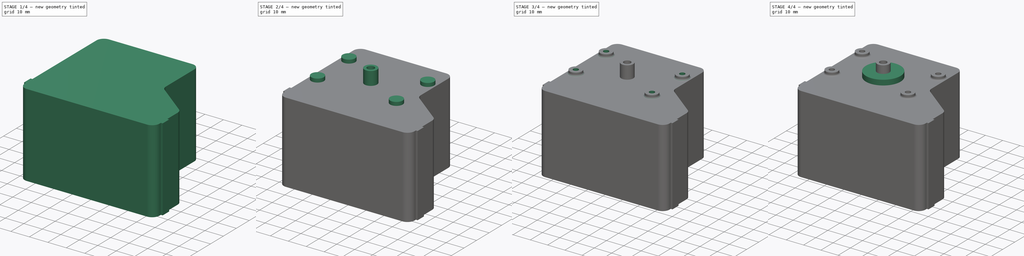
[diagram: build sequence overview — one tinted view per stage of 4, left to right]
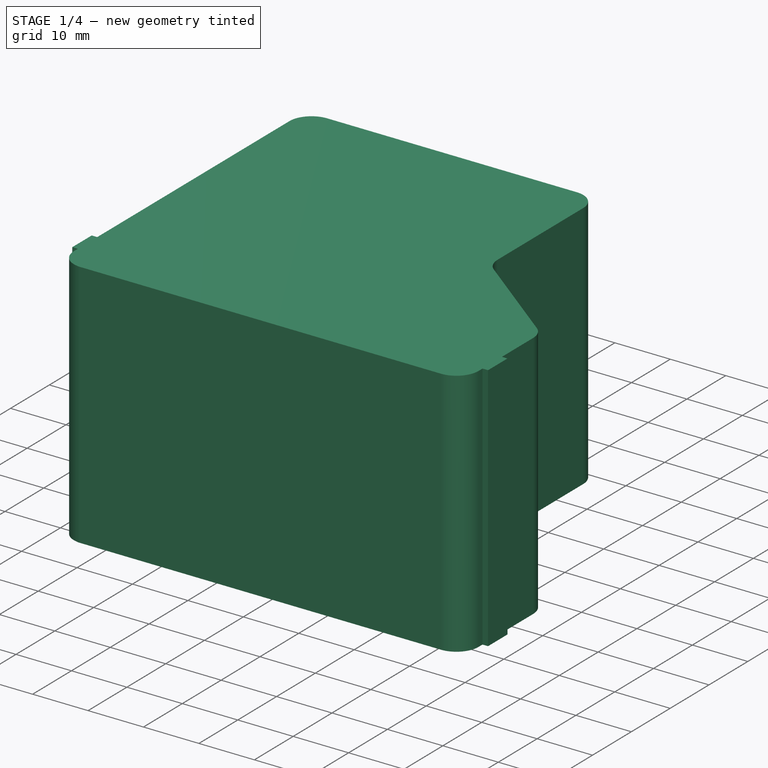
[diagram: stage 1 of 4 — iso view after this stage's code; geometry added in this stage tinted green]
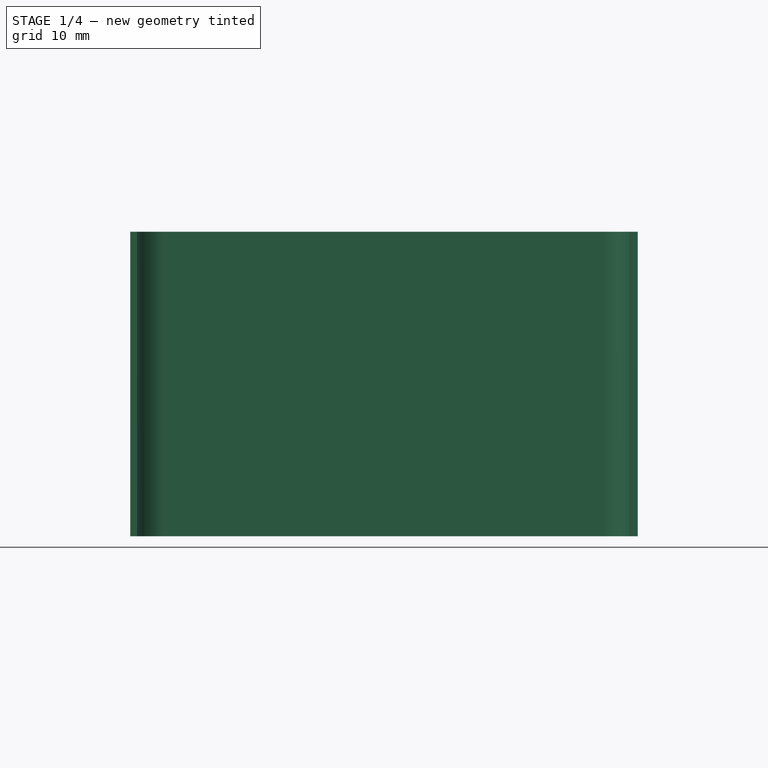
[diagram: stage 1 of 4 — front view after this stage's code; geometry added in this stage tinted green]
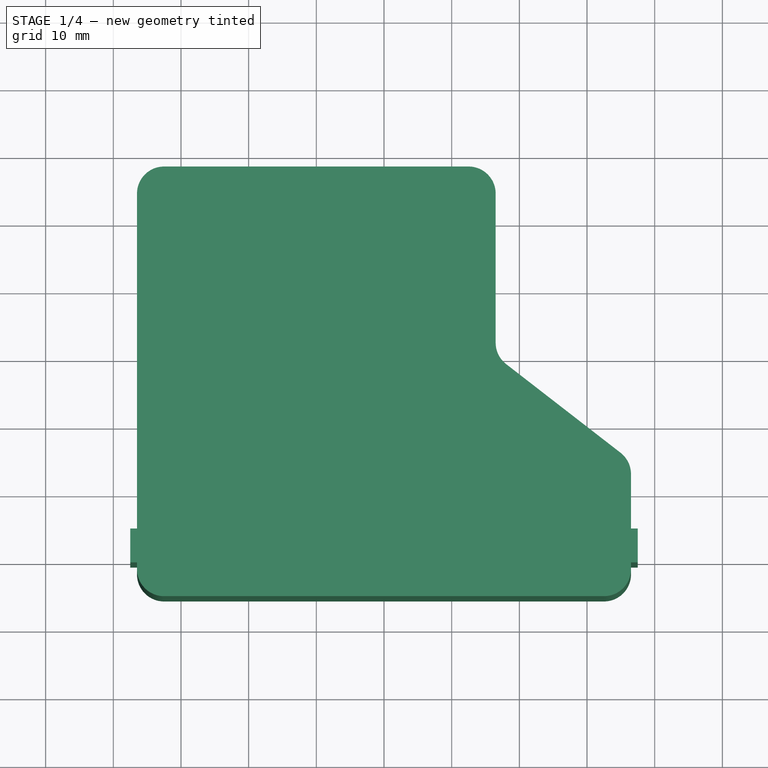
[diagram: stage 1 of 4 — top view after this stage's code; geometry added in this stage tinted green]
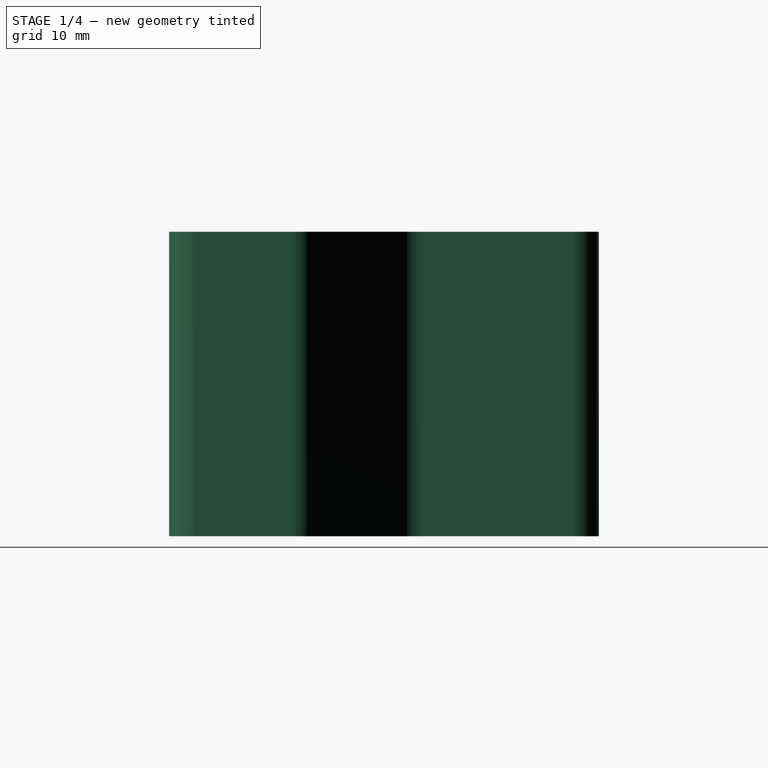
[diagram: stage 1 of 4 — right view after this stage's code; geometry added in this stage tinted green]
FCSTD DOCUMENT  (FreeCAD 0.16R6712 (Git))
Label: opc
License: All rights reserved
LicenseURL: http://en.wikipedia.org/wiki/All_rights_reserved
objects: Sketcher::SketchObject×7, PartDesign::Pad×5, PartDesign::Fillet×3, PartDesign::Pocket×2, Part::Feature×1
note: 25 computed .brp shape members not serialized (recipe doc carries the construction recipe); baked Part::Feature solids carry a one-line shape summary decoded from their .brp

FEATURE [Sketcher::SketchObject] Sketch
  sketch-geometry (16):
    g0: LineSegment StartX=-26.5 StartY=-30.5 StartZ=0 EndX=-26.5 EndY=-35.5 EndZ=0
    g1: LineSegment StartX=-26.5 StartY=-35.5 StartZ=0 EndX=46.5 EndY=-35.5 EndZ=0
    g2: LineSegment StartX=46.5 StartY=-35.5 StartZ=0 EndX=46.5 EndY=-30.5 EndZ=0
    g3: LineSegment StartX=46.5 StartY=-30.5 StartZ=0 EndX=47.5 EndY=-30.5 EndZ=0
    g4: LineSegment StartX=-26.5 StartY=-30.5 StartZ=0 EndX=-27.5 EndY=-30.5 EndZ=0
    g5: LineSegment StartX=-27.5 StartY=-30.5 StartZ=0 EndX=-27.5 EndY=-25.5 EndZ=0
    g6: LineSegment StartX=-27.5 StartY=-25.5 StartZ=0 EndX=-26.5 EndY=-25.5 EndZ=0
    g7: LineSegment StartX=47.5 StartY=-30.5 StartZ=0 EndX=47.5 EndY=-25.5 EndZ=0
    g8: LineSegment StartX=47.5 StartY=-25.5 StartZ=0 EndX=46.5 EndY=-25.5 EndZ=0
    g9: LineSegment StartX=46.5 StartY=-25.5 StartZ=0 EndX=46.5 EndY=-15.5 EndZ=0
    g10: LineSegment StartX=46.5 StartY=-15.5 StartZ=0 EndX=26.5 EndY=0 EndZ=0
    g11: LineSegment StartX=26.5 StartY=0 StartZ=0 EndX=26.5 EndY=28 EndZ=0
    g12: LineSegment StartX=26.5 StartY=28 StartZ=0 EndX=-26.5 EndY=28 EndZ=0
    g13: LineSegment StartX=-26.5 StartY=28 StartZ=0 EndX=-26.5 EndY=-25.5 EndZ=0
    g14: LineSegment [constr] StartX=-26.5 StartY=-25.5 StartZ=0 EndX=-26.5 EndY=-30.5 EndZ=0
    g15: LineSegment [constr] StartX=46.5 StartY=-25.5 StartZ=0 EndX=46.5 EndY=-30.5 EndZ=0
  constraints (46):
    c: Coincident(g1,g0)
    c: Horizontal(g1)
    c: Coincident(g2,g1)
    c: Coincident(g3,g2)
    c: Coincident(g4,g0)
    c: Coincident(g5,g4)
    c: Vertical(g5)
    c: Coincident(g6,g5)
    c: Coincident(g7,g3)
    c: Coincident(g8,g7)
    c: Horizontal(g8)
    c: Coincident(g9,g8)
    c: Vertical(g9)
    c: Coincident(g10,g9)
    c: Coincident(g11,g10)
    c: Vertical(g11)
    c: Horizontal(g12)
    c: Coincident(g13,g12)
    c: Coincident(g13,g6)
    c: Vertical(g13)
    c: Equal(g3,g4)
    c: Equal(g4,g6)
    c: Equal(g6,g8)
    c: Horizontal(g4)
    c: Horizontal(g3)
    c: Vertical(g7)
    c: Vertical(g2)
    c: Horizontal(g6)
    c: Vertical(g0)
    c: Equal(g7,g5)
    c: DistanceX(g12,g12) = 53
    c: DistanceY(g0,g12) = 63.5
    c: Coincident(g11,g12)
    c: DistanceX(g4,g4) = 1
    c: DistanceX(g4,g3) = 75
    c: DistanceY(g5,g5) = 5
    c: DistanceY(g0,g0) = 5
    c: Equal(g0,g2)
    c: DistanceY(g9,g9) = 10
    c: Coincident(g14,g6)
    c: Coincident(g14,g0)
    c: Coincident(g15,g8)
    c: Coincident(g15,g2)
    c: DistanceY(g11,g11) = 28
    c: Symmetric(g12,g11,g-2)
    c: DistanceY(g0,g-1) = 35.5
FEATURE [PartDesign::Pad] Pad
  Length = 45
  Length2 = 100
  Sketch = -> Sketch
  Type = 0
FEATURE [PartDesign::Fillet] Fillet
  Base = -> Pad [Edge26,Edge23,Edge29,Edge2,Edge5,Edge20]
  Radius = 4
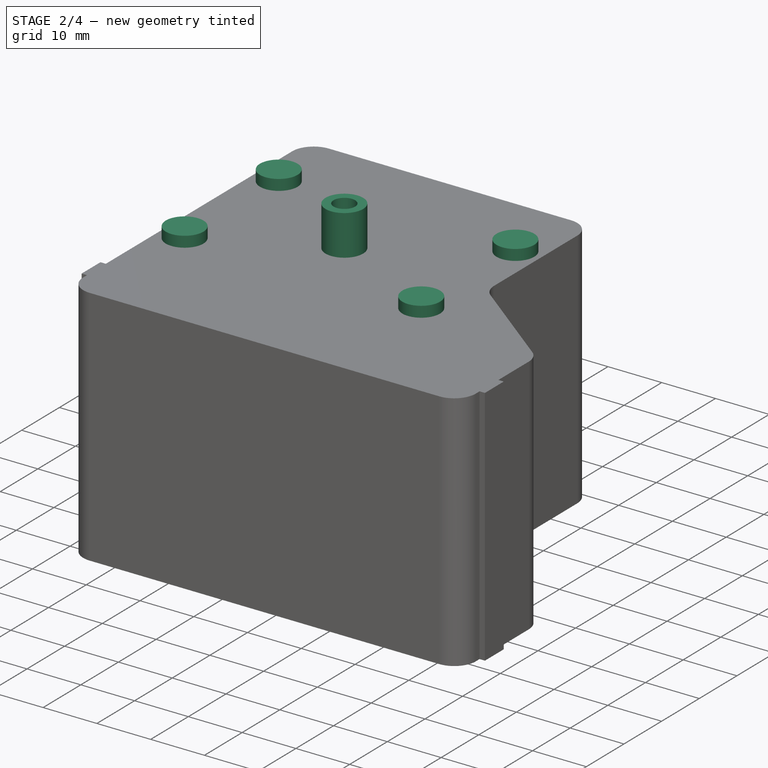
[diagram: stage 2 of 4 — iso view after this stage's code; geometry added in this stage tinted green]
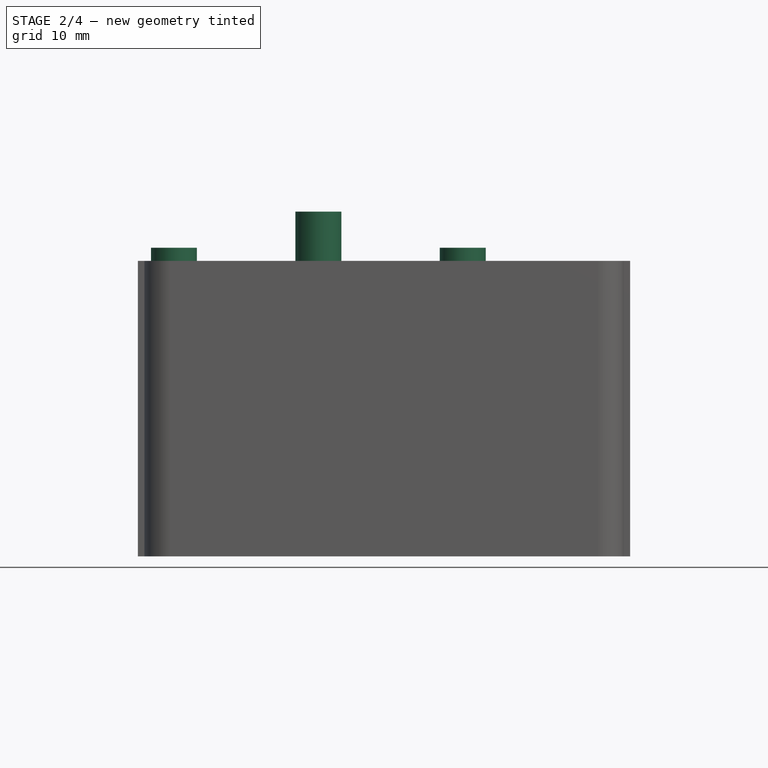
[diagram: stage 2 of 4 — front view after this stage's code; geometry added in this stage tinted green]
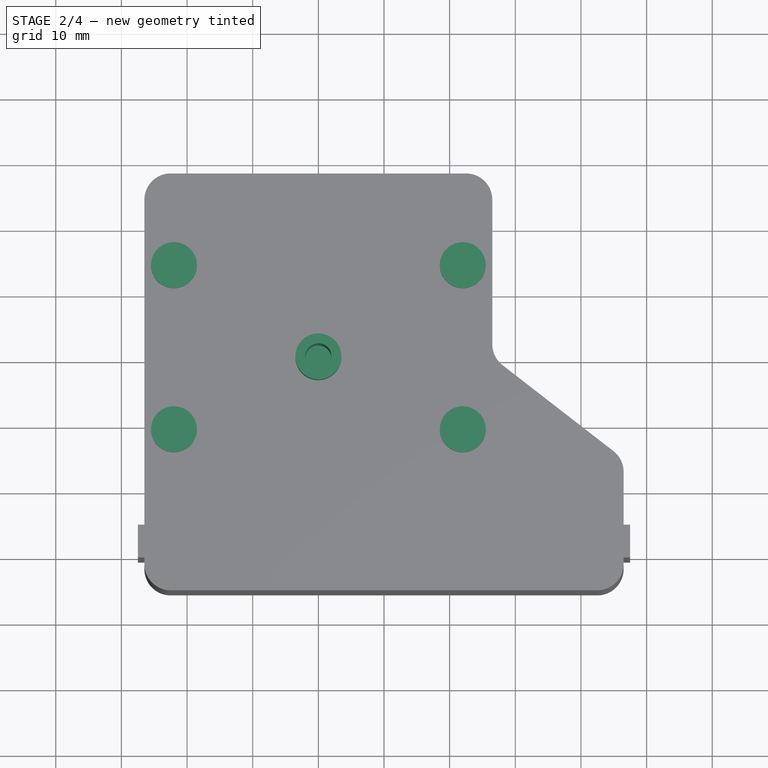
[diagram: stage 2 of 4 — top view after this stage's code; geometry added in this stage tinted green]
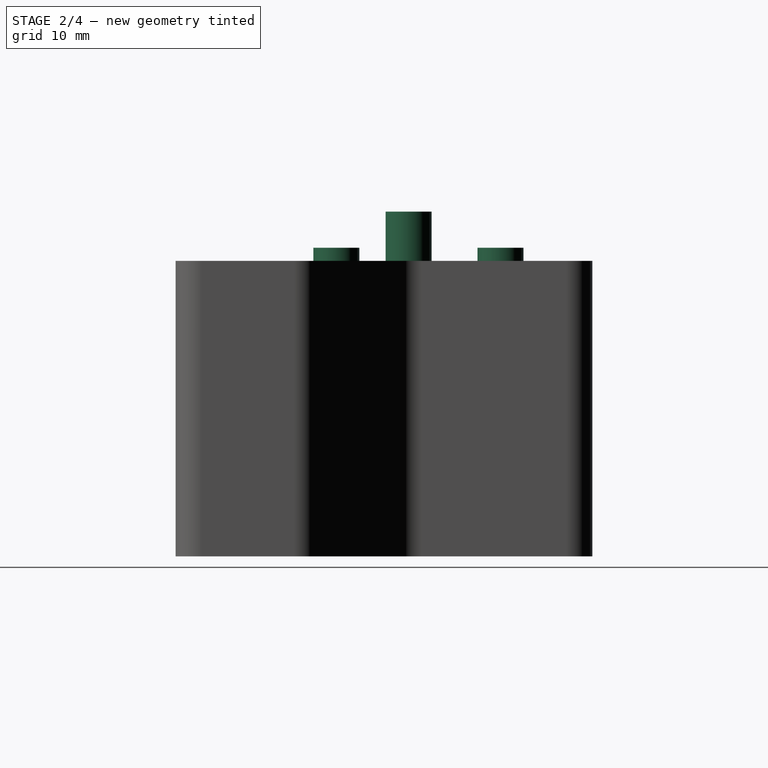
[diagram: stage 2 of 4 — right view after this stage's code; geometry added in this stage tinted green]
FEATURE [Sketcher::SketchObject] Sketch001
  Placement = pos=(0,0,45) rot=(0,0,1;0rad)
  Support = -> Fillet [Face5]
  sketch-geometry (1):
    g0: Circle CenterX=0 CenterY=0 CenterZ=0 NormalX=0 NormalY=0 NormalZ=1 Radius=3.5
  constraints (3):
    c: Radius(g0) = 3.5
    c: PointOnObject(g0,g-2)
    c: PointOnObject(g0,g-1)
FEATURE [PartDesign::Pad] Pad001
  Length = 7.5
  Length2 = 100
  Sketch = -> Sketch001
  Type = 0
FEATURE [Sketcher::SketchObject] Sketch002
  Placement = pos=(0,0,52.5) rot=(0,0,1;0rad)
  Support = -> Pad001 [Face1]
  sketch-geometry (1):
    g0: Circle CenterX=0 CenterY=0 CenterZ=0 NormalX=0 NormalY=0 NormalZ=1 Radius=2
  constraints (3):
    c: PointOnObject(g0,g-2)
    c: Radius(g0) = 2
    c: PointOnObject(g0,g-1)
FEATURE [PartDesign::Pocket] Pocket
  Length = 20
  Sketch = -> Sketch002
  Type = 0
FEATURE [Sketcher::SketchObject] Sketch003
  Placement = pos=(0,0,45) rot=(0,0,1;0rad)
  Support = -> Pocket [Face4]
  sketch-geometry (4):
    g0: Circle CenterX=-22 CenterY=14 CenterZ=0 NormalX=0 NormalY=0 NormalZ=1 Radius=3.5
    g1: Circle CenterX=22 CenterY=14 CenterZ=0 NormalX=0 NormalY=0 NormalZ=1 Radius=3.5
    g2: Circle CenterX=-22 CenterY=-11 CenterZ=0 NormalX=0 NormalY=0 NormalZ=1 Radius=3.5
    g3: Circle CenterX=22 CenterY=-11 CenterZ=0 NormalX=0 NormalY=0 NormalZ=1 Radius=3.5
  constraints (10):
    c: Radius(g0) = 3.5
    c: Equal(g0,g1)
    c: Symmetric(g0,g1,g-2)
    c: DistanceX(g0,g-1) = 22
    c: DistanceY(g-1,g0) = 14
    c: Equal(g3,g2)
    c: Equal(g2,g0)
    c: Symmetric(g2,g3,g-2)
    c: DistanceY(g2,g-1) = 11
    c: DistanceX(g2,g3) = 44
FEATURE [PartDesign::Pad] Pad002
  Length = 2
  Length2 = 100
  Sketch = -> Sketch003
  Type = 0
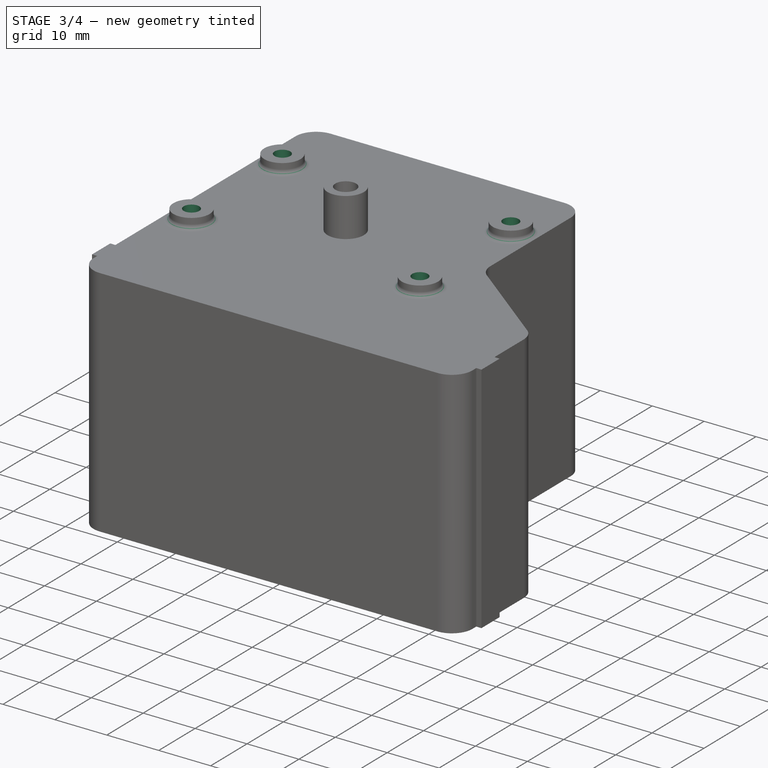
[diagram: stage 3 of 4 — iso view after this stage's code; geometry added in this stage tinted green]
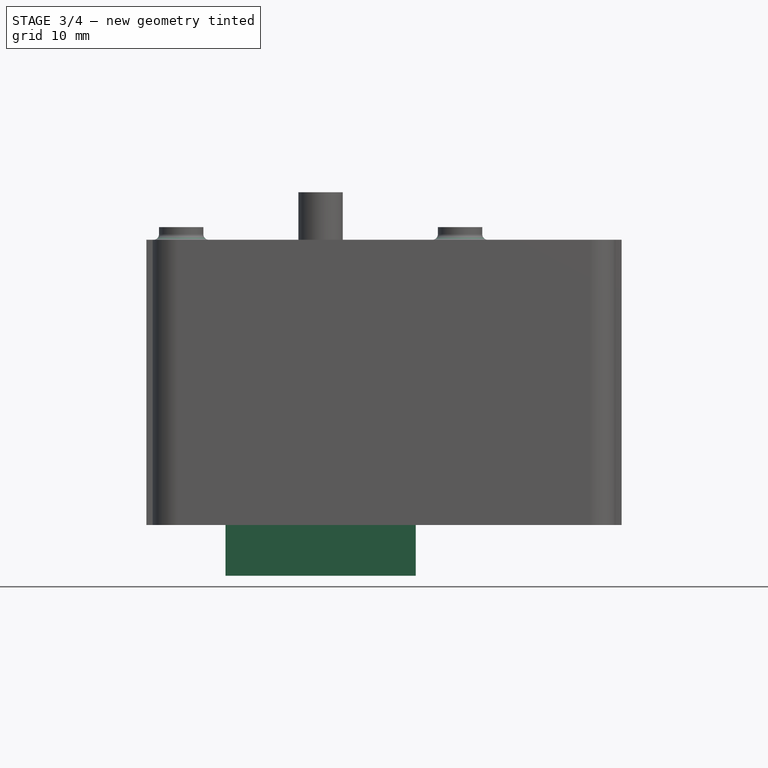
[diagram: stage 3 of 4 — front view after this stage's code; geometry added in this stage tinted green]
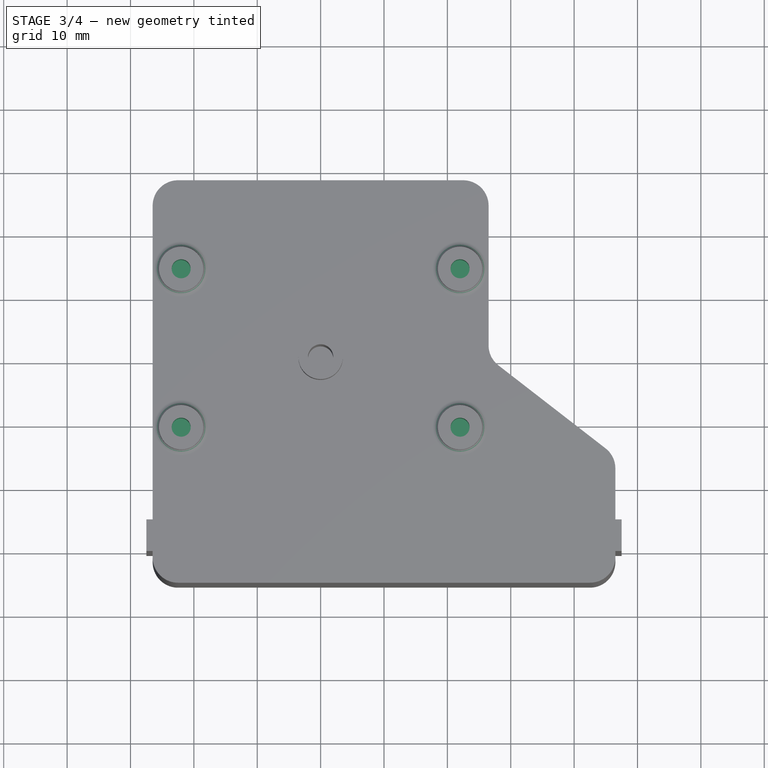
[diagram: stage 3 of 4 — top view after this stage's code; geometry added in this stage tinted green]
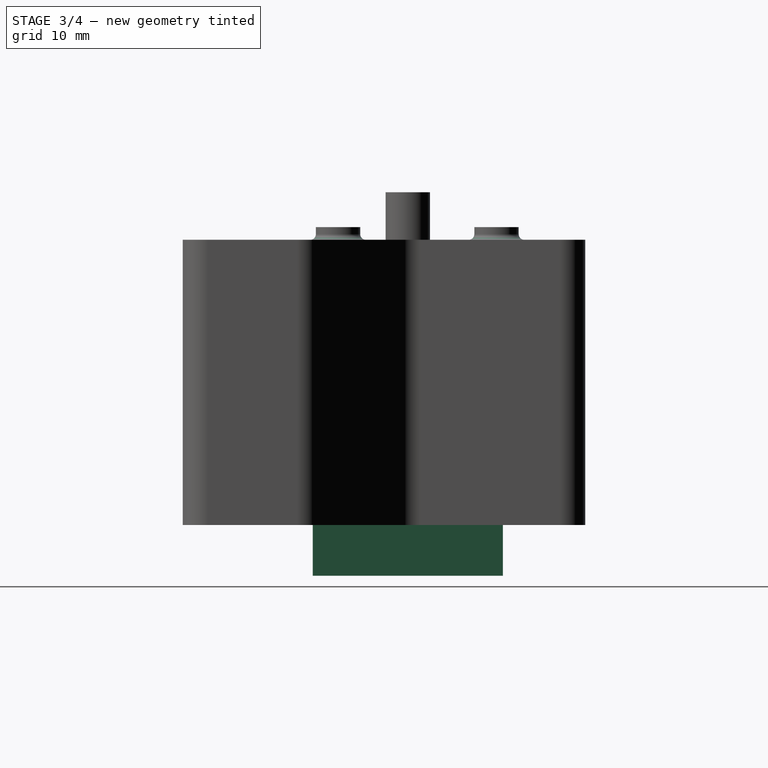
[diagram: stage 3 of 4 — right view after this stage's code; geometry added in this stage tinted green]
FEATURE [Sketcher::SketchObject] Sketch004
  Placement = pos=(0,0,47) rot=(0,0,1;0rad)
  Support = -> Pad002 [Face33]
  sketch-geometry (4):
    g0: Circle CenterX=-22 CenterY=14 CenterZ=0 NormalX=0 NormalY=0 NormalZ=1 Radius=1.5
    g1: Circle CenterX=22 CenterY=14 CenterZ=0 NormalX=0 NormalY=0 NormalZ=1 Radius=1.5
    g2: Circle CenterX=22 CenterY=-11 CenterZ=0 NormalX=0 NormalY=0 NormalZ=1 Radius=1.5
    g3: Circle CenterX=-22 CenterY=-11 CenterZ=0 NormalX=0 NormalY=0 NormalZ=1 Radius=1.5
  constraints (10):
    c: Radius(g0) = 1.5
    c: Equal(g0,g1)
    c: Equal(g1,g3)
    c: Equal(g3,g2)
    c: Symmetric(g0,g1,g-2)
    c: Symmetric(g3,g2,g-2)
    c: DistanceY(g-1,g0) = 14
    c: DistanceY(g3,g-1) = 11
    c: DistanceX(g3,g2) = 44
    c: DistanceX(g0,g-1) = 22
FEATURE [PartDesign::Pocket] Pocket001
  Length = 7
  Sketch = -> Sketch004
  Type = 0
FEATURE [PartDesign::Fillet] Fillet001
  Base = -> Pocket001 [Edge28,Edge27,Edge30,Edge29]
  Radius = 0.9
FEATURE [Sketcher::SketchObject] Sketch005
  Placement = pos=(0,0,0) rot=(1,0,0;3.14159rad)
  Support = -> Fillet001 [Face28]
  sketch-geometry (4):
    g0: LineSegment StartX=-15 StartY=15 StartZ=0 EndX=15 EndY=15 EndZ=0
    g1: LineSegment StartX=15 StartY=15 StartZ=0 EndX=15 EndY=-15 EndZ=0
    g2: LineSegment StartX=15 StartY=-15 StartZ=0 EndX=-15 EndY=-15 EndZ=0
    g3: LineSegment StartX=-15 StartY=-15 StartZ=0 EndX=-15 EndY=15 EndZ=0
  constraints (14):
    c: Coincident(g0,g1)
    c: Coincident(g1,g2)
    c: Coincident(g2,g3)
    c: Coincident(g3,g0)
    c: Horizontal(g0)
    c: Horizontal(g2)
    c: Vertical(g1)
    c: Vertical(g3)
    c: Equal(g0,g1)
    c: Equal(g1,g2)
    c: Equal(g2,g3)
    c: Symmetric(g0,g0,g-2)
    c: Symmetric(g2,g0,g-1)
    c: DistanceX(g0,g0) = 30
FEATURE [PartDesign::Pad] Pad003
  Length = 8
  Length2 = 100
  Sketch = -> Sketch005
  Type = 0
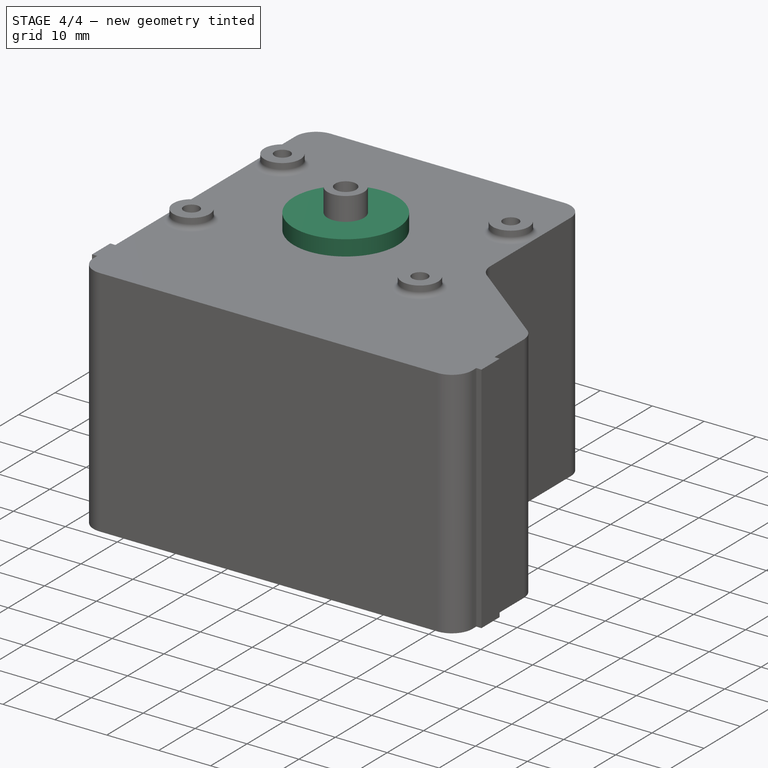
[diagram: stage 4 of 4 — iso view after this stage's code; geometry added in this stage tinted green]
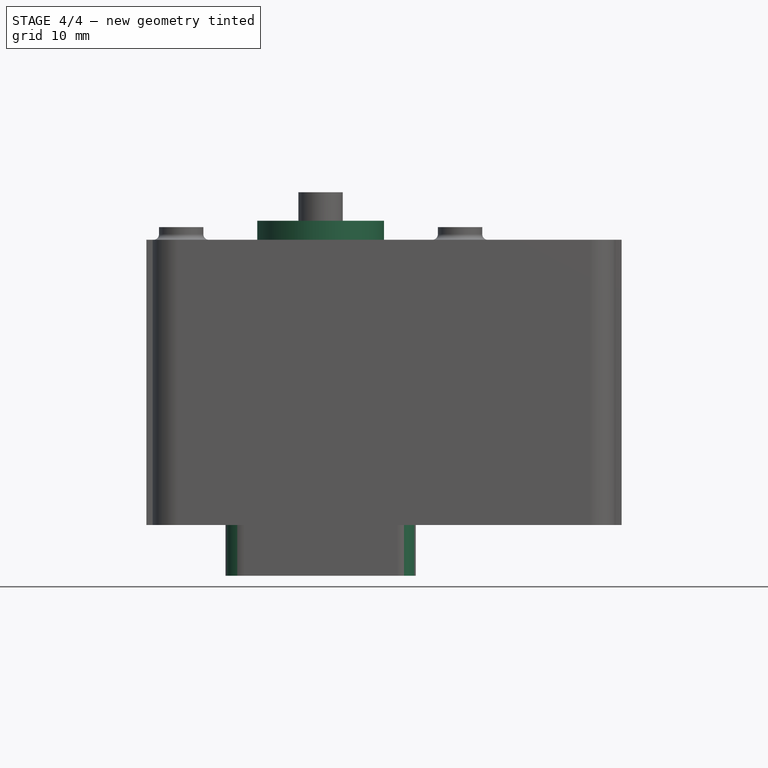
[diagram: stage 4 of 4 — front view after this stage's code; geometry added in this stage tinted green]
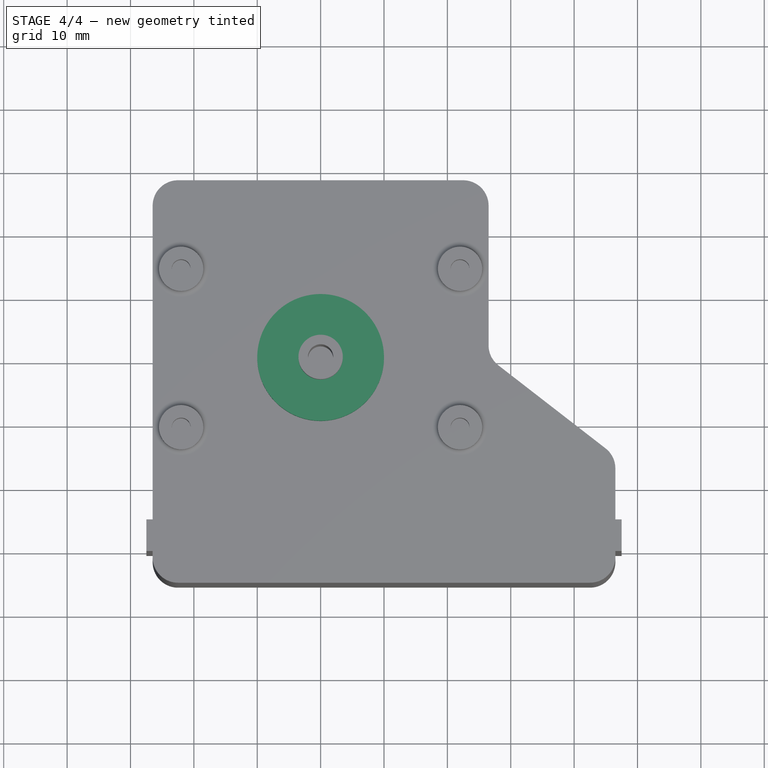
[diagram: stage 4 of 4 — top view after this stage's code; geometry added in this stage tinted green]
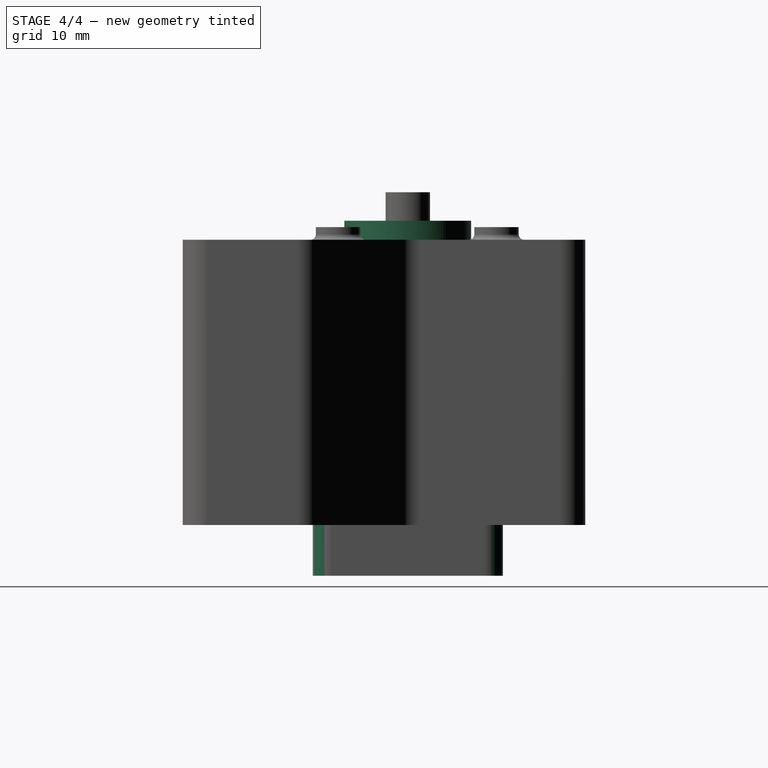
[diagram: stage 4 of 4 — right view after this stage's code; geometry added in this stage tinted green]
FEATURE [PartDesign::Fillet] Fillet002
  Base = -> Pad003 [Edge5,Edge7,Edge11,Edge9]
  Radius = 3
FEATURE [Sketcher::SketchObject] Sketch006
  Placement = pos=(0,0,45) rot=(0,0,1;0rad)
  Support = -> Fillet002 [Face31]
  sketch-geometry (2):
    g0: Circle CenterX=0 CenterY=0 CenterZ=0 NormalX=0 NormalY=0 NormalZ=1 Radius=10
    g1: Circle CenterX=0 CenterY=0 CenterZ=0 NormalX=0 NormalY=0 NormalZ=1 Radius=3.5
  constraints (4):
    c: Coincident(g0,g-1)
    c: Coincident(g1,g-1)
    c: Radius(g1) = 3.5
    c: Radius(g0) = 10
FEATURE [PartDesign::Pad] Pad004
  Length = 3
  Length2 = 100
  Sketch = -> Sketch006
  Type = 0
FEATURE [Part::Feature] Pad004001  label="opc"
  shape: bbox 75 x 63.5 x 60.5 mm, 57 faces (baked)
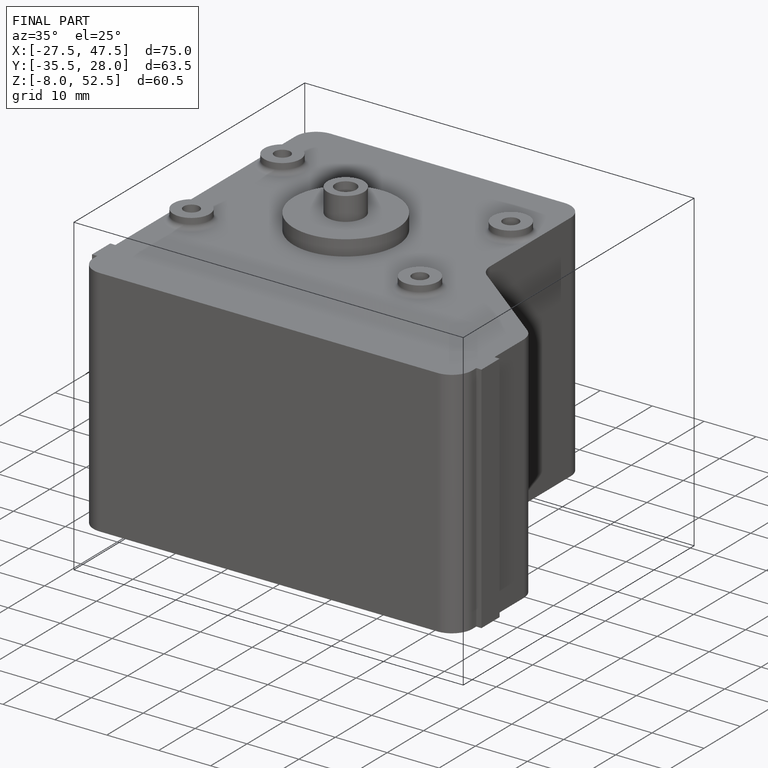
[diagram: finished part — iso view with bounding-box wireframe]
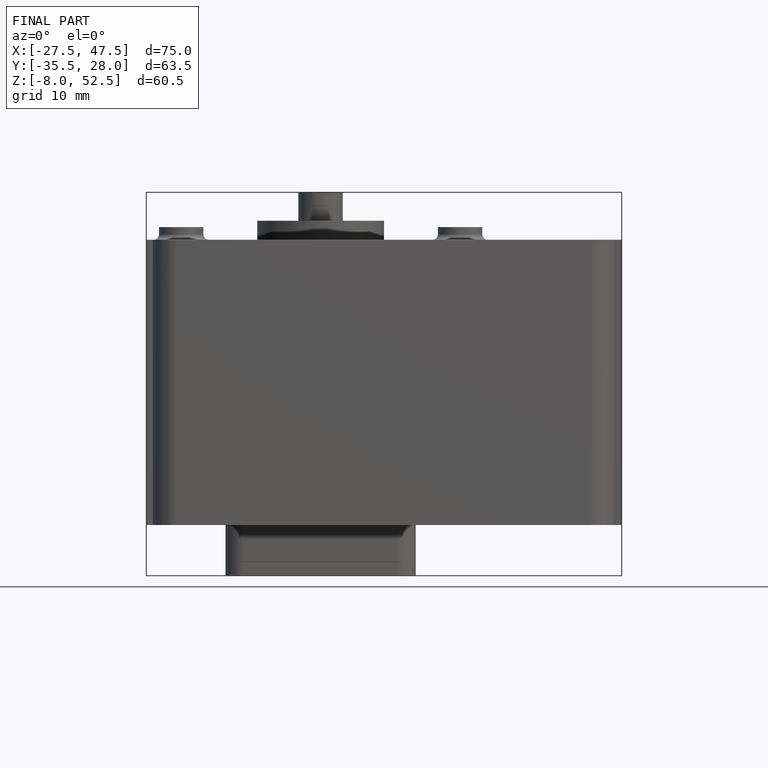
[diagram: finished part — front view with bounding-box wireframe]
